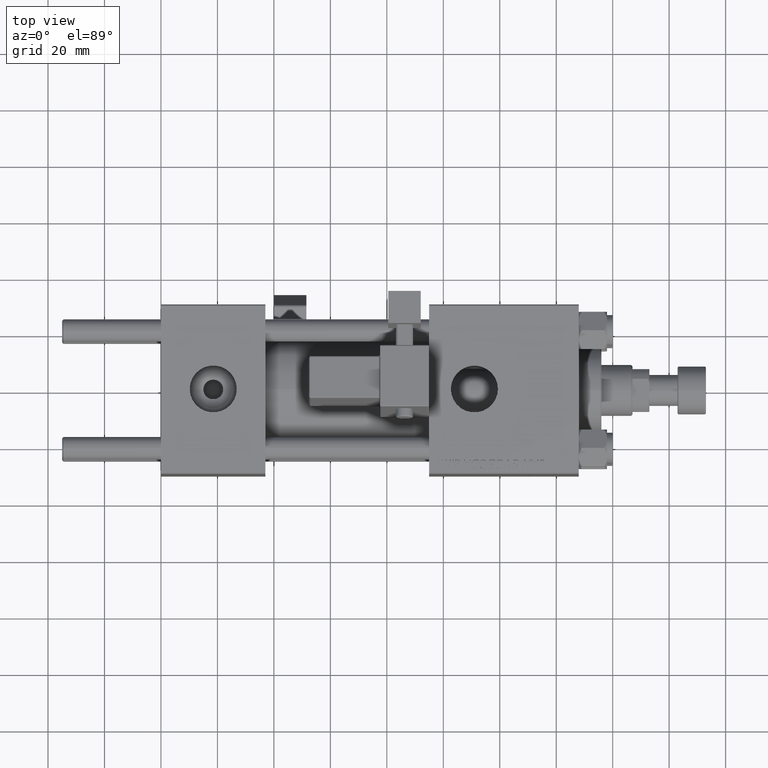
[diagram: clean part render]
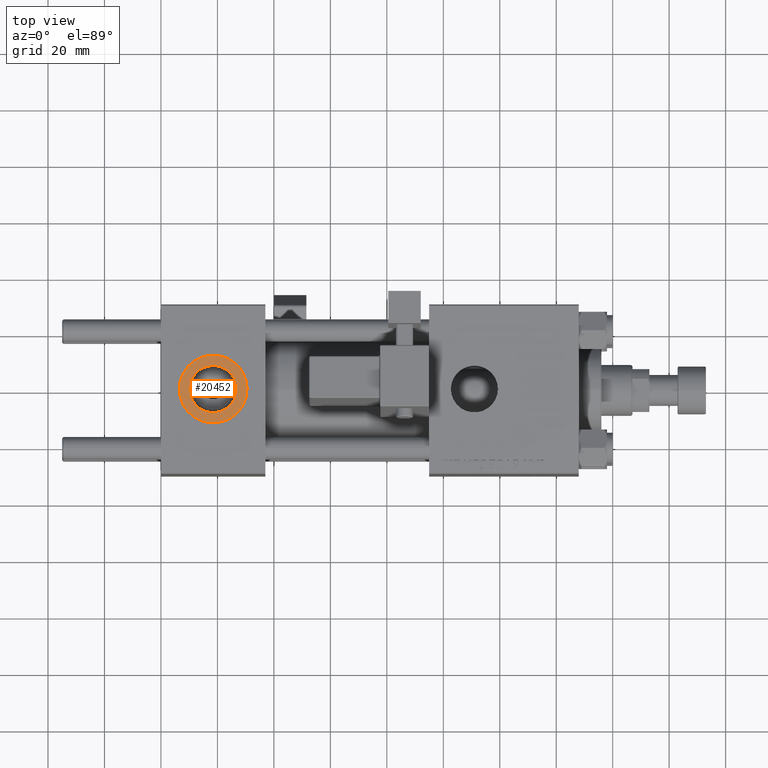
[diagram: same view with one face highlighted and labeled with its STEP entity id]
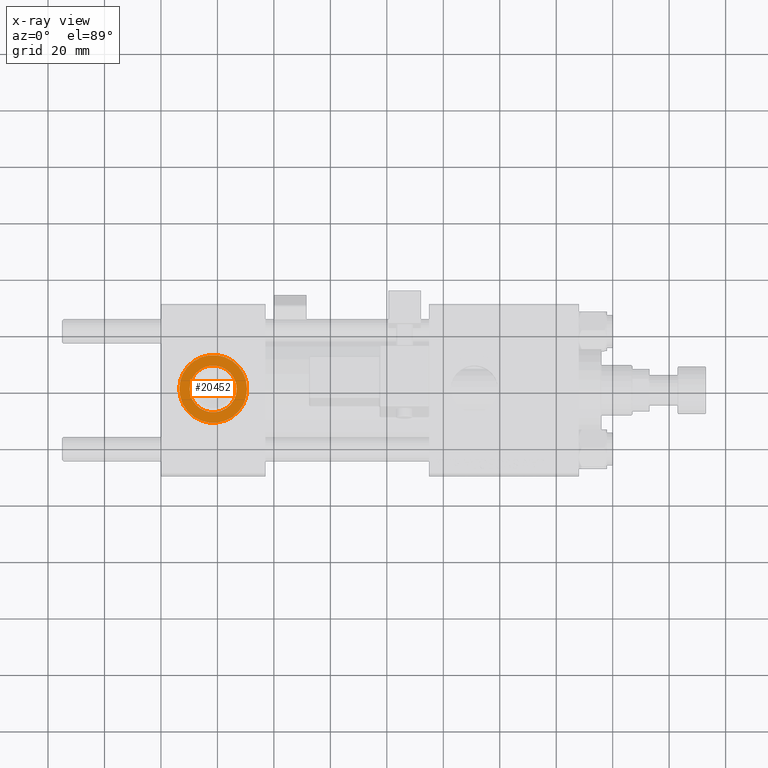
[diagram: x-ray of the same camera — body ghosted, the highlighted face saturated]
A machine part, top view. The second image highlights one B-rep face of the part: STEP entity #20452.
The next image is the same camera in x-ray: the body ghosted, the highlighted face saturated — about 0% of this face is hidden behind the body in this view.
In plain terms, the highlighted planar face has unit normal (0, 0, 1).
Its self-contained STEP definition (entity closure, byte-faithful):
#275 = ORIENTED_EDGE ( 'NONE', *, *, #44421, .F. ) ;
#915 = DIRECTION ( 'NONE',  ( 0.000000000000000000, 0.000000000000000000, 1.000000000000000000 ) ) ;
#1591 = CARTESIAN_POINT ( 'NONE',  ( 18.50000000000000000, -3.469446951953614978E-15, 29.79999999999999716 ) ) ;
#2628 = EDGE_CURVE ( 'NONE', #3711, #12695, #16502, .T. ) ;
#3711 = VERTEX_POINT ( 'NONE', #4989 ) ;
#3983 = CARTESIAN_POINT ( 'NONE',  ( 18.50000000000000000, -3.469446951953614978E-15, 29.79999999999999716 ) ) ;
#4146 = VERTEX_POINT ( 'NONE', #14464 ) ;
#4450 = CARTESIAN_POINT ( 'NONE',  ( 18.50000000000000000, -3.469446951953614978E-15, 29.79999999999999716 ) ) ;
#4989 = CARTESIAN_POINT ( 'NONE',  ( 6.499999999999997335, -1.999870792976790833E-15, 29.79999999999999716 ) ) ;
#6899 = ORIENTED_EDGE ( 'NONE', *, *, #2628, .T. ) ;
#11146 = CARTESIAN_POINT ( 'NONE',  ( 30.50000000000000000, -3.469446951953614978E-15, 29.79999999999999716 ) ) ;
#12676 = DIRECTION ( 'NONE',  ( 1.000000000000000000, 0.000000000000000000, -0.000000000000000000 ) ) ;
#12695 = VERTEX_POINT ( 'NONE', #11146 ) ;
#14202 = VERTEX_POINT ( 'NONE', #27861 ) ;
#14464 = CARTESIAN_POINT ( 'NONE',  ( 10.16999999999999638, -2.449316168263869821E-15, 29.79999999999999716 ) ) ;
#14654 = ORIENTED_EDGE ( 'NONE', *, *, #20286, .T. ) ;
#16502 = CIRCLE ( 'NONE', #39400, 12.00000000000000000 ) ;
#16930 = FACE_OUTER_BOUND ( 'NONE', #45457, .T. ) ;
#19232 = CIRCLE ( 'NONE', #48860, 8.330000000000000071 ) ;
#20286 = EDGE_CURVE ( 'NONE', #12695, #3711, #40057, .T. ) ;
#20452 = ADVANCED_FACE ( 'NONE', ( #49018, #16930 ), #20913, .T. ) ;
#20702 = DIRECTION ( 'NONE',  ( 1.000000000000000000, 0.000000000000000000, 0.000000000000000000 ) ) ;
#20913 = PLANE ( 'NONE',  #45140 ) ;
#27083 = CARTESIAN_POINT ( 'NONE',  ( 18.50000000000000000, -3.469446951953614978E-15, 29.79999999999999716 ) ) ;
#27861 = CARTESIAN_POINT ( 'NONE',  ( 26.82999999999999829, -3.469446951953614978E-15, 29.79999999999999716 ) ) ;
#28771 = EDGE_LOOP ( 'NONE', ( #42473, #275 ) ) ;
#30260 = DIRECTION ( 'NONE',  ( 0.000000000000000000, 0.000000000000000000, 1.000000000000000000 ) ) ;
#33181 = EDGE_CURVE ( 'NONE', #14202, #4146, #19232, .T. ) ;
#33290 = DIRECTION ( 'NONE',  ( 1.000000000000000000, 0.000000000000000000, 0.000000000000000000 ) ) ;
#35214 = AXIS2_PLACEMENT_3D ( 'NONE', #37279, #915, #33290 ) ;
#35283 = DIRECTION ( 'NONE',  ( 0.000000000000000000, 0.000000000000000000, 1.000000000000000000 ) ) ;
#37279 = CARTESIAN_POINT ( 'NONE',  ( 18.50000000000000000, -3.469446951953614978E-15, 29.79999999999999716 ) ) ;
#39400 = AXIS2_PLACEMENT_3D ( 'NONE', #3983, #45110, #20702 ) ;
#40057 = CIRCLE ( 'NONE', #46013, 12.00000000000000000 ) ;
#41072 = DIRECTION ( 'NONE',  ( 0.000000000000000000, 0.000000000000000000, 1.000000000000000000 ) ) ;
#42004 = CIRCLE ( 'NONE', #35214, 8.330000000000000071 ) ;
#42473 = ORIENTED_EDGE ( 'NONE', *, *, #33181, .F. ) ;
#44421 = EDGE_CURVE ( 'NONE', #4146, #14202, #42004, .T. ) ;
#45110 = DIRECTION ( 'NONE',  ( 0.000000000000000000, 0.000000000000000000, 1.000000000000000000 ) ) ;
#45140 = AXIS2_PLACEMENT_3D ( 'NONE', #4450, #41072, #12676 ) ;
#45457 = EDGE_LOOP ( 'NONE', ( #14654, #6899 ) ) ;
#46013 = AXIS2_PLACEMENT_3D ( 'NONE', #1591, #30260, #46691 ) ;
#46691 = DIRECTION ( 'NONE',  ( 1.000000000000000000, 0.000000000000000000, 0.000000000000000000 ) ) ;
#48860 = AXIS2_PLACEMENT_3D ( 'NONE', #27083, #35283, #51470 ) ;
#49018 = FACE_BOUND ( 'NONE', #28771, .T. ) ;
#51470 = DIRECTION ( 'NONE',  ( 1.000000000000000000, 0.000000000000000000, 0.000000000000000000 ) ) ;